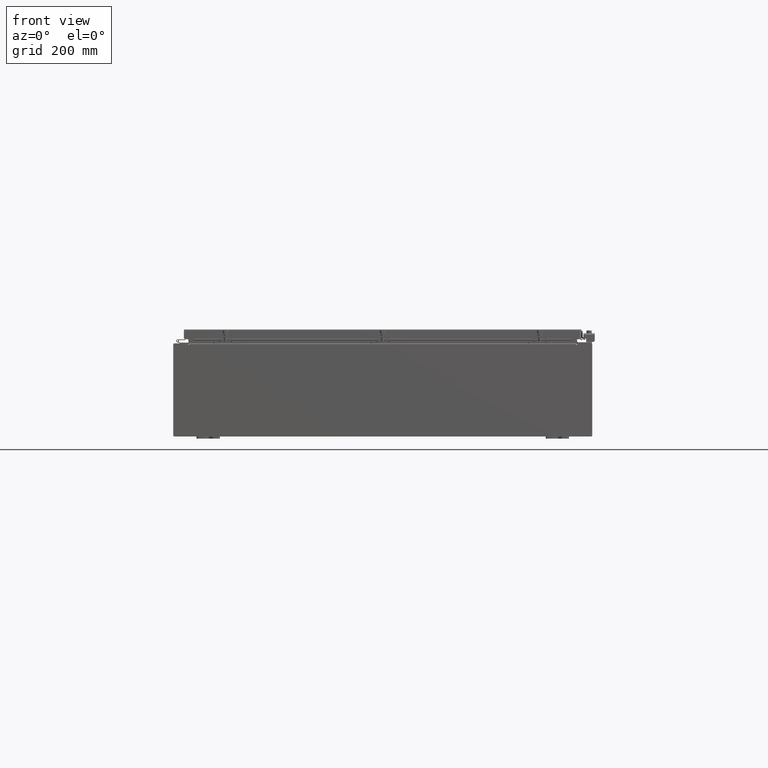
[diagram: clean part render]
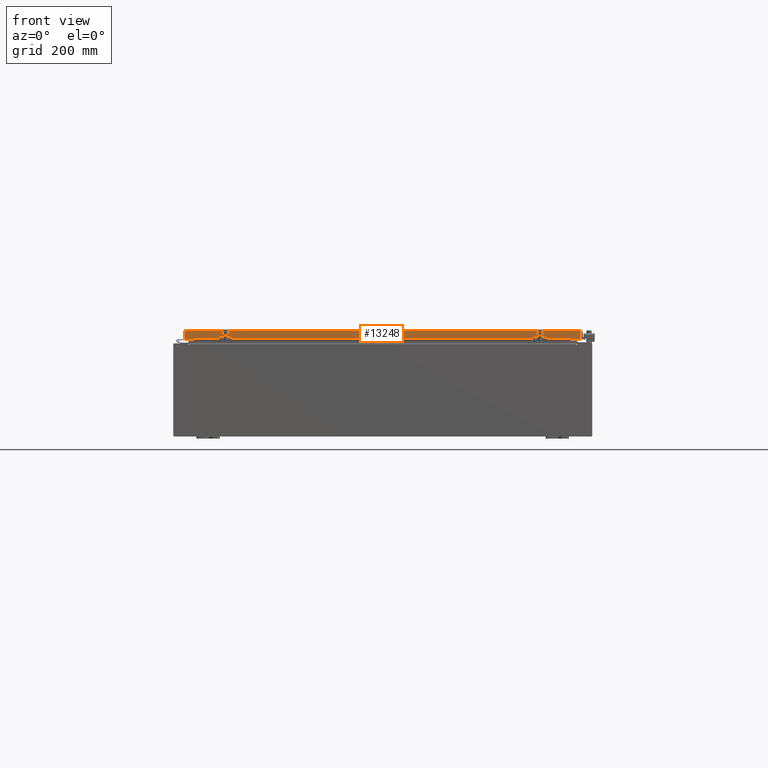
[diagram: same view with one face highlighted and labeled with its STEP entity id]
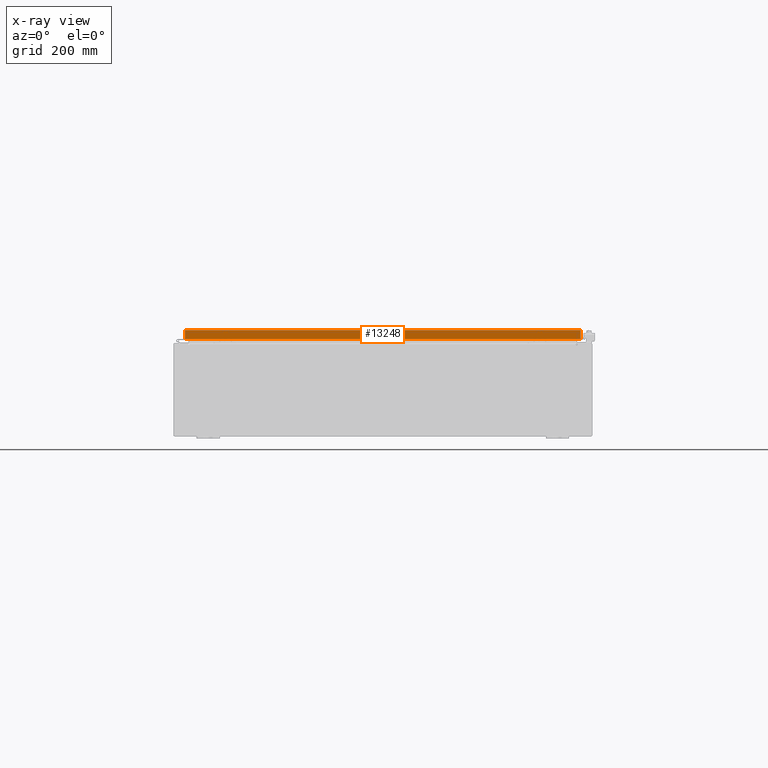
[diagram: x-ray of the same camera — body ghosted, the highlighted face saturated]
A machine part, front view. The second image highlights one B-rep face of the part: STEP entity #13248.
The next image is the same camera in x-ray: the body ghosted, the highlighted face saturated — about 0% of this face is hidden behind the body in this view.
In plain terms, the highlighted planar face has unit normal (-0, 1, -0).
Its self-contained STEP definition (entity closure, byte-faithful):
#1241 = CARTESIAN_POINT ( 'NONE',  ( 16.98915786437626700, -23.09400000000000500, -0.8499999999999996400 ) ) ;
#2450 = DIRECTION ( 'NONE',  ( 0.0000000000000000000, -5.637761885544720300E-015, -1.000000000000000000 ) ) ;
#3955 = CARTESIAN_POINT ( 'NONE',  ( 17.07799999999999900, -23.09400000000000100, -0.08769999999999547600 ) ) ;
#5849 = DIRECTION ( 'NONE',  ( -1.000000000000000000, -8.758115402030108600E-047, 1.239713195391617400E-016 ) ) ;
#6597 = LINE ( 'NONE', #35791, #28780 ) ;
#7191 = EDGE_CURVE ( 'NONE', #51941, #17475, #48587, .T. ) ;
#7806 = CARTESIAN_POINT ( 'NONE',  ( 17.07799999999999900, -23.09400000000000500, -0.8499999999999996400 ) ) ;
#8303 = DIRECTION ( 'NONE',  ( 0.0000000000000000000, 5.637761885544720300E-015, 1.000000000000000000 ) ) ;
#11166 = ORIENTED_EDGE ( 'NONE', *, *, #26340, .F. ) ;
#11990 = DIRECTION ( 'NONE',  ( -1.000000000000000000, -8.758115402030108600E-047, 1.239713195391617400E-016 ) ) ;
#12793 = AXIS2_PLACEMENT_3D ( 'NONE', #29064, #33256, #8303 ) ;
#12939 = VECTOR ( 'NONE', #5849, 39.37007874015748100 ) ;
#13248 = ADVANCED_FACE ( 'NONE', ( #48557 ), #53985, .F. ) ;
#15133 = ORIENTED_EDGE ( 'NONE', *, *, #39340, .F. ) ;
#15635 = VERTEX_POINT ( 'NONE', #51038 ) ;
#16144 = EDGE_CURVE ( 'NONE', #51941, #15635, #6597, .T. ) ;
#16579 = VERTEX_POINT ( 'NONE', #26296 ) ;
#17475 = VERTEX_POINT ( 'NONE', #29474 ) ;
#18685 = VECTOR ( 'NONE', #30166, 39.37007874015748100 ) ;
#20010 = LINE ( 'NONE', #25984, #18685 ) ;
#22173 = VERTEX_POINT ( 'NONE', #1241 ) ;
#22229 = EDGE_LOOP ( 'NONE', ( #25946, #33948, #24845, #35299, #15133, #11166 ) ) ;
#24845 = ORIENTED_EDGE ( 'NONE', *, *, #25319, .F. ) ;
#25319 = EDGE_CURVE ( 'NONE', #30060, #15635, #47483, .T. ) ;
#25946 = ORIENTED_EDGE ( 'NONE', *, *, #7191, .F. ) ;
#25984 = CARTESIAN_POINT ( 'NONE',  ( 16.98915786437626700, -23.09400000000000100, -0.07469999999999958600 ) ) ;
#26296 = CARTESIAN_POINT ( 'NONE',  ( 16.23915786437626400, -23.09400000000000500, -0.8500000000000048600 ) ) ;
#26340 = EDGE_CURVE ( 'NONE', #17475, #22173, #20010, .T. ) ;
#27754 = VECTOR ( 'NONE', #52691, 39.37007874015748100 ) ;
#28542 = VECTOR ( 'NONE', #11990, 39.37007874015748100 ) ;
#28780 = VECTOR ( 'NONE', #2450, 39.37007874015748100 ) ;
#29064 = CARTESIAN_POINT ( 'NONE',  ( 1.614087649790581200E-029, -23.09400000000000100, 1.304592866407813600E-013 ) ) ;
#29474 = CARTESIAN_POINT ( 'NONE',  ( 16.98915786437626700, -23.09400000000000100, -0.08769999999999549000 ) ) ;
#30060 = VERTEX_POINT ( 'NONE', #47399 ) ;
#30166 = DIRECTION ( 'NONE',  ( -0.0000000000000000000, -5.637761885544720300E-015, -1.000000000000000000 ) ) ;
#32563 = CARTESIAN_POINT ( 'NONE',  ( -16.98915786437626700, -23.09400000000000100, -0.08769999999999547600 ) ) ;
#33256 = DIRECTION ( 'NONE',  ( -6.989207801985715000E-031, 1.000000000000000000, -5.637761885544720300E-015 ) ) ;
#33948 = ORIENTED_EDGE ( 'NONE', *, *, #16144, .T. ) ;
#34989 = CARTESIAN_POINT ( 'NONE',  ( 17.07799999999999900, -23.09400000000000500, -0.8499999999999996400 ) ) ;
#35299 = ORIENTED_EDGE ( 'NONE', *, *, #49707, .F. ) ;
#35791 = CARTESIAN_POINT ( 'NONE',  ( -16.98915786437627100, -23.09400000000000100, 1.304592866407813600E-013 ) ) ;
#35883 = VECTOR ( 'NONE', #42580, 39.37007874015748100 ) ;
#38397 = CARTESIAN_POINT ( 'NONE',  ( 16.23915786437626700, -23.09400000000000500, -0.8500000000000048600 ) ) ;
#39340 = EDGE_CURVE ( 'NONE', #22173, #16579, #40955, .T. ) ;
#40955 = LINE ( 'NONE', #7806, #28542 ) ;
#42580 = DIRECTION ( 'NONE',  ( -1.000000000000000000, 0.0000000000000000000, 0.0000000000000000000 ) ) ;
#47399 = CARTESIAN_POINT ( 'NONE',  ( -16.23915786437626700, -23.09400000000000500, -0.8500000000000048600 ) ) ;
#47483 = LINE ( 'NONE', #34989, #12939 ) ;
#48274 = LINE ( 'NONE', #38397, #35883 ) ;
#48557 = FACE_OUTER_BOUND ( 'NONE', #22229, .T. ) ;
#48587 = LINE ( 'NONE', #3955, #27754 ) ;
#49707 = EDGE_CURVE ( 'NONE', #16579, #30060, #48274, .T. ) ;
#51038 = CARTESIAN_POINT ( 'NONE',  ( -16.98915786437626700, -23.09400000000000500, -0.8499999999999954300 ) ) ;
#51941 = VERTEX_POINT ( 'NONE', #32563 ) ;
#52691 = DIRECTION ( 'NONE',  ( 1.000000000000000000, 6.989207801985715800E-031, -3.922586267643549700E-045 ) ) ;
#53985 = PLANE ( 'NONE',  #12793 ) ;